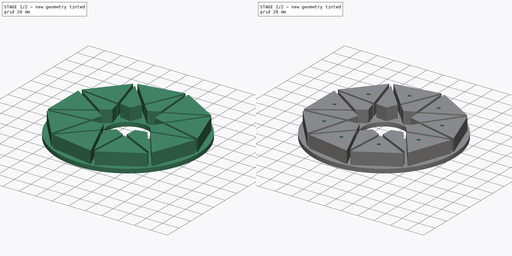
[diagram: build sequence overview — one tinted view per stage of 2, left to right]
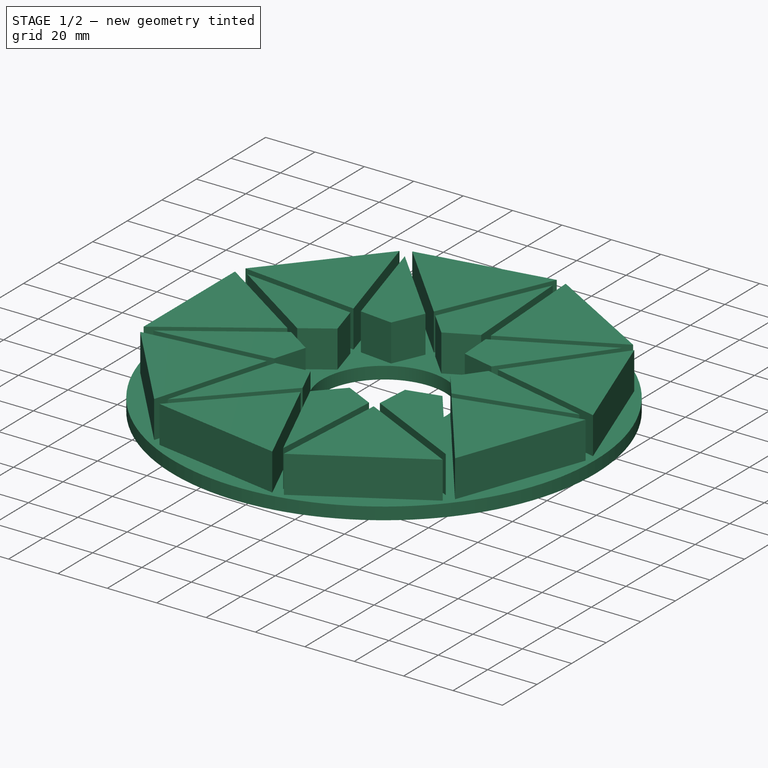
[diagram: stage 1 of 2 — iso view after this stage's code; geometry added in this stage tinted green]
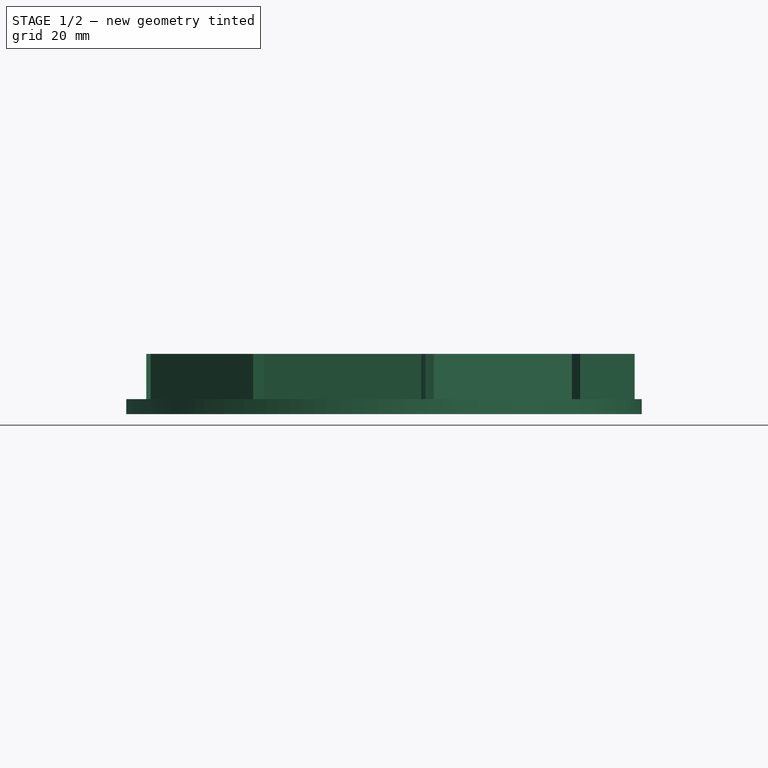
[diagram: stage 1 of 2 — front view after this stage's code; geometry added in this stage tinted green]
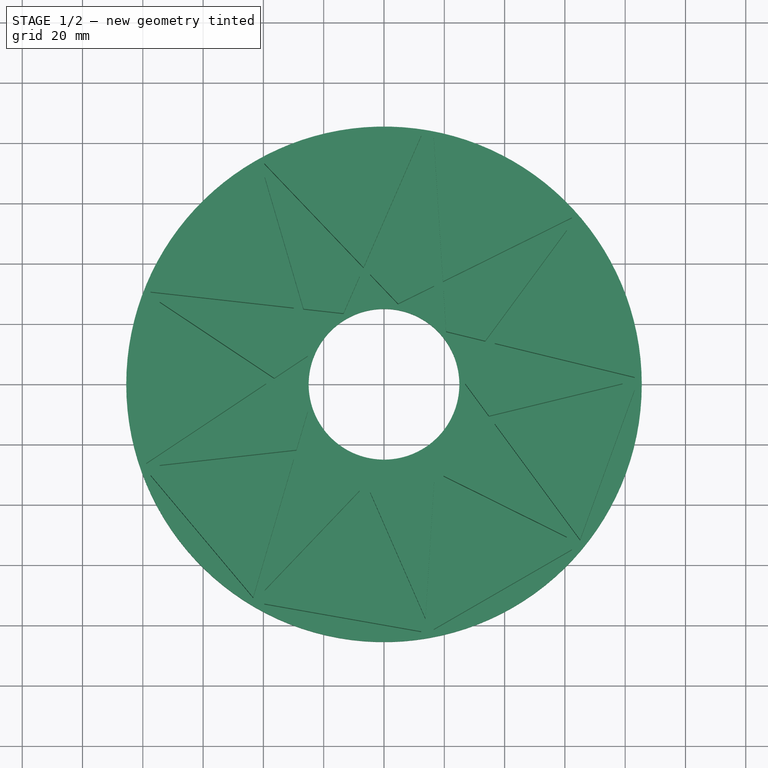
[diagram: stage 1 of 2 — top view after this stage's code; geometry added in this stage tinted green]
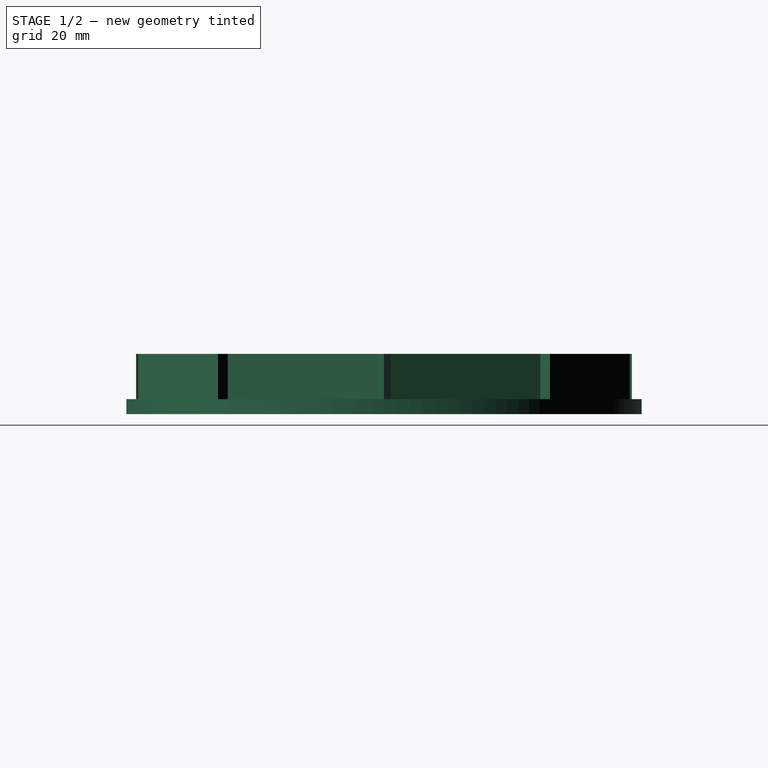
[diagram: stage 1 of 2 — right view after this stage's code; geometry added in this stage tinted green]
FCSTD DOCUMENT  (FreeCAD 0.20R29410 (Git))
Label: wheel_gear_inner_fixation
License: All rights reserved
LicenseURL: http://en.wikipedia.org/wiki/All_rights_reserved
objects: Sketcher::SketchObject×3, PartDesign::Pad×2, Image::ImagePlane×1, PartDesign::Pocket×1, PartDesign::Body×1
note: 10 computed .brp shape members not serialized (recipe doc carries the construction recipe); baked Part::Feature solids carry a one-line shape summary decoded from their .brp

FEATURE [Sketcher::SketchObject] Sketch
  FullyConstrained = true
  MapMode = 5
  Support = -> [XY_Plane]
  sketch-geometry (110):
    g0: LineSegment StartX=65.4968 StartY=-54.9583 StartZ=0 EndX=85.5 EndY=7.1e-15 EndZ=0
    g1: LineSegment StartX=85.5 StartY=7.1e-15 StartZ=0 EndX=65.4968 EndY=54.9583 EndZ=0
    g2: LineSegment StartX=65.4968 StartY=54.9583 StartZ=0 EndX=14.8469 EndY=84.2011 EndZ=0
    g3: LineSegment StartX=14.8469 StartY=84.2011 StartZ=0 EndX=-42.75 EndY=74.0452 EndZ=0
    g4: LineSegment StartX=-42.75 StartY=74.0452 StartZ=0 EndX=-80.3437 EndY=29.2427 EndZ=0
    g5: LineSegment StartX=-80.3437 StartY=29.2427 StartZ=0 EndX=-80.3437 EndY=-29.2427 EndZ=0
    g6: LineSegment StartX=-80.3437 StartY=-29.2427 StartZ=0 EndX=-42.75 EndY=-74.0452 EndZ=0
    g7: LineSegment StartX=-42.75 StartY=-74.0452 StartZ=0 EndX=14.8469 EndY=-84.2011 EndZ=0
    g8: LineSegment StartX=14.8469 StartY=-84.2011 StartZ=0 EndX=65.4968 EndY=-54.9583 EndZ=0
    g9: Circle CenterX=0 CenterY=0 CenterZ=0 NormalX=0 NormalY=0 NormalZ=1 AngleXU=0 Radius=85.5
    g10: LineSegment StartX=22.1582 StartY=-3.90708 StartZ=0 EndX=22.1582 EndY=3.90708 EndZ=0
    g11: LineSegment StartX=22.1582 StartY=3.90708 StartZ=0 EndX=19.4856 EndY=11.25 EndZ=0
    g12: LineSegment StartX=19.4856 StartY=11.25 StartZ=0 EndX=14.4627 EndY=17.236 EndZ=0
    g13: LineSegment StartX=14.4627 StartY=17.236 StartZ=0 EndX=7.69545 EndY=21.1431 EndZ=0
    g14: LineSegment StartX=7.69545 StartY=21.1431 StartZ=0 EndX=-1.5277e-12 EndY=22.5 EndZ=0
    g15: LineSegment StartX=-1.5277e-12 StartY=22.5 StartZ=0 EndX=-7.69545 EndY=21.1431 EndZ=0
    g16: LineSegment StartX=-7.69545 StartY=21.1431 StartZ=0 EndX=-14.4627 EndY=17.236 EndZ=0
    g17: LineSegment StartX=-14.4627 StartY=17.236 StartZ=0 EndX=-19.4856 EndY=11.25 EndZ=0
    g18: LineSegment StartX=-19.4856 StartY=11.25 StartZ=0 EndX=-22.1582 EndY=3.90708 EndZ=0
    g19: LineSegment StartX=-22.1582 StartY=3.90708 StartZ=0 EndX=-22.1582 EndY=-3.90708 EndZ=0
    g20: LineSegment StartX=-22.1582 StartY=-3.90708 StartZ=0 EndX=-19.4856 EndY=-11.25 EndZ=0
    g21: LineSegment StartX=-19.4856 StartY=-11.25 StartZ=0 EndX=-14.4627 EndY=-17.236 EndZ=0
    g22: LineSegment StartX=-14.4627 StartY=-17.236 StartZ=0 EndX=-7.69545 EndY=-21.1431 EndZ=0
    g23: LineSegment StartX=-7.69545 StartY=-21.1431 StartZ=0 EndX=-1.4557e-12 EndY=-22.5 EndZ=0
    g24: LineSegment StartX=-1.4559e-12 StartY=-22.5 StartZ=0 EndX=7.69545 EndY=-21.1431 EndZ=0
    g25: LineSegment StartX=7.69545 StartY=-21.1431 StartZ=0 EndX=14.4627 EndY=-17.236 EndZ=0
    g26: LineSegment StartX=14.4627 StartY=-17.236 StartZ=0 EndX=19.4856 EndY=-11.25 EndZ=0
    g27: LineSegment StartX=19.4856 StartY=-11.25 StartZ=0 EndX=22.1582 EndY=-3.90708 EndZ=0
    g28: Circle CenterX=0 CenterY=0 CenterZ=0 NormalX=0 NormalY=0 NormalZ=1 AngleXU=0 Radius=22.5
    g29: LineSegment StartX=14.4627 StartY=17.236 StartZ=0 EndX=85.5 EndY=7.1e-15 EndZ=0
    g30: LineSegment StartX=14.8469 StartY=84.2011 StartZ=0 EndX=19.4856 EndY=11.25 EndZ=0
    g31: LineSegment StartX=22.1582 StartY=3.90708 StartZ=0 EndX=65.4968 EndY=-54.9583 EndZ=0
    g32: LineSegment StartX=22.1582 StartY=-3.90708 StartZ=0 EndX=65.4968 EndY=54.9583 EndZ=0
    g33: LineSegment StartX=-1.5277e-12 StartY=22.5 StartZ=0 EndX=65.4968 EndY=54.9583 EndZ=0
    g34: LineSegment StartX=-42.75 StartY=74.0452 StartZ=0 EndX=7.69545 EndY=21.1431 EndZ=0
    g35: LineSegment StartX=14.4627 StartY=-17.236 StartZ=0 EndX=85.5 EndY=7.1e-15 EndZ=0
    g36: LineSegment StartX=19.4856 StartY=-11.25 StartZ=0 EndX=14.8469 EndY=-84.2011 EndZ=0
    g37: LineSegment StartX=7.69545 StartY=-21.1431 StartZ=0 EndX=-42.75 EndY=-74.0452 EndZ=0
    g38: LineSegment StartX=-1.4559e-12 StartY=-22.5 StartZ=0 EndX=65.4968 EndY=-54.9583 EndZ=0
    g39: LineSegment StartX=-7.69545 StartY=-21.1431 StartZ=0 EndX=-80.3437 EndY=-29.2427 EndZ=0
    g40: LineSegment StartX=-14.4627 StartY=-17.236 StartZ=0 EndX=14.8469 EndY=-84.2011 EndZ=0
    g41: LineSegment StartX=-14.4627 StartY=17.236 StartZ=0 EndX=14.8469 EndY=84.2011 EndZ=0
    g42: LineSegment StartX=-7.69545 StartY=21.1431 StartZ=0 EndX=-80.3437 EndY=29.2427 EndZ=0
    g43: LineSegment StartX=-22.1582 StartY=3.90708 StartZ=0 EndX=-42.75 EndY=74.0452 EndZ=0
    g44: LineSegment StartX=-19.4856 StartY=-11.25 StartZ=0 EndX=-80.3437 EndY=29.2427 EndZ=0
    g45: LineSegment StartX=-22.1582 StartY=-3.90708 StartZ=0 EndX=-42.75 EndY=-74.0452 EndZ=0
    g46: LineSegment StartX=-19.4856 StartY=11.25 StartZ=0 EndX=-80.3437 EndY=-29.2427 EndZ=0
    g47: LineSegment StartX=16.5216 StartY=81.5022 StartZ=0 EndX=62.3222 EndY=55.0592 EndZ=0
    g48: LineSegment StartX=19.5507 StartY=33.8629 StartZ=0 EndX=62.3222 EndY=55.0592 EndZ=0
    g49: LineSegment StartX=16.5216 StartY=81.5022 StartZ=0 EndX=19.5507 EndY=33.8629 EndZ=0
    g50: LineSegment StartX=-39.7323 StartY=73.0541 StartZ=0 EndX=12.3502 EndY=82.2377 EndZ=0
    g51: LineSegment StartX=12.3502 StartY=82.2377 StartZ=0 EndX=-6.7899 EndY=38.5074 EndZ=0
    g52: LineSegment StartX=-39.7323 StartY=73.0541 StartZ=0 EndX=-6.7899 EndY=38.5074 EndZ=0
    g53: LineSegment StartX=13.7422 StartY=77.9362 StartZ=0 EndX=-4.54537 EndY=36.1536 EndZ=0
    g54: LineSegment StartX=-4.54537 StartY=36.1536 StartZ=0 EndX=4.67068 EndY=26.4887 EndZ=0
    g55: LineSegment StartX=4.67068 StartY=26.4887 StartZ=0 EndX=16.6365 EndY=32.4187 EndZ=0
    g56: LineSegment StartX=16.6365 StartY=32.4187 StartZ=0 EndX=13.7422 EndY=77.9362 EndZ=0
    g57: LineSegment StartX=19.7571 StartY=30.617 StartZ=0 EndX=60.6236 EndY=50.8692 EndZ=0
    g58: LineSegment StartX=60.6236 StartY=50.8692 StartZ=0 EndX=33.5826 EndY=14.1404 EndZ=0
    g59: LineSegment StartX=33.5826 StartY=14.1404 StartZ=0 EndX=20.6046 EndY=17.2893 EndZ=0
    g60: LineSegment StartX=20.6046 StartY=17.2893 StartZ=0 EndX=19.7571 EndY=30.617 EndZ=0
    g61: LineSegment StartX=65.0448 StartY=51.8144 StartZ=0 EndX=36.7434 EndY=13.3735 EndZ=0
    g62: LineSegment StartX=65.0448 StartY=51.8144 StartZ=0 EndX=83.1329 EndY=2.11786 EndZ=0
    g63: LineSegment StartX=36.7434 StartY=13.3735 StartZ=0 EndX=83.1329 EndY=2.11786 EndZ=0
    g64: LineSegment StartX=34.8151 StartY=10.7543 StartZ=0 EndX=79.1385 EndY=0 EndZ=0
    g65: LineSegment StartX=34.8151 StartY=10.7543 StartZ=0 EndX=26.8974 EndY=-1.2204e-12 EndZ=0
    g66: LineSegment StartX=26.8974 StartY=-1.2204e-12 StartZ=0 EndX=34.8151 EndY=-10.7543 EndZ=0
    g67: LineSegment StartX=34.8151 StartY=-10.7543 StartZ=0 EndX=79.1385 EndY=0 EndZ=0
    g68: LineSegment StartX=36.7434 StartY=-13.3735 StartZ=0 EndX=83.1329 EndY=-2.11786 EndZ=0
    g69: LineSegment StartX=83.1329 StartY=-2.11786 StartZ=0 EndX=65.0448 EndY=-51.8144 EndZ=0
    g70: LineSegment StartX=65.0448 StartY=-51.8144 StartZ=0 EndX=36.7434 EndY=-13.3735 EndZ=0
    g71: LineSegment StartX=20.6046 StartY=-17.2893 StartZ=0 EndX=33.5826 EndY=-14.1404 EndZ=0
    g72: LineSegment StartX=20.6046 StartY=-17.2893 StartZ=0 EndX=19.7571 EndY=-30.617 EndZ=0
    g73: LineSegment StartX=19.7571 StartY=-30.617 StartZ=0 EndX=60.6236 EndY=-50.8692 EndZ=0
    g74: LineSegment StartX=60.6236 StartY=-50.8692 StartZ=0 EndX=33.5826 EndY=-14.1404 EndZ=0
    g75: LineSegment StartX=19.5507 StartY=-33.8629 StartZ=0 EndX=16.5216 EndY=-81.5022 EndZ=0
    g76: LineSegment StartX=16.5216 StartY=-81.5022 StartZ=0 EndX=62.3222 EndY=-55.0592 EndZ=0
    g77: LineSegment StartX=62.3222 StartY=-55.0592 StartZ=0 EndX=19.5507 EndY=-33.8629 EndZ=0
    g78: LineSegment StartX=4.67068 StartY=-26.4887 StartZ=0 EndX=16.6365 EndY=-32.4187 EndZ=0
    g79: LineSegment StartX=16.6365 StartY=-32.4187 StartZ=0 EndX=13.7422 EndY=-77.9362 EndZ=0
    g80: LineSegment StartX=13.7422 StartY=-77.9362 StartZ=0 EndX=-4.54537 EndY=-36.1536 EndZ=0
    g81: LineSegment StartX=-4.54537 StartY=-36.1536 StartZ=0 EndX=4.67068 EndY=-26.4887 EndZ=0
    g82: LineSegment StartX=-6.7899 StartY=-38.5074 StartZ=0 EndX=12.3502 EndY=-82.2377 EndZ=0
    g83: LineSegment StartX=12.3502 StartY=-82.2377 StartZ=0 EndX=-39.7323 EndY=-73.0541 EndZ=0
    g84: LineSegment StartX=-39.7323 StartY=-73.0541 StartZ=0 EndX=-6.7899 EndY=-38.5074 EndZ=0
    g85: LineSegment StartX=-26.721 StartY=-24.7736 StartZ=0 EndX=-13.4487 EndY=-23.2938 EndZ=0
    g86: LineSegment StartX=-13.4487 StartY=-23.2938 StartZ=0 EndX=-8.09401 EndY=-35.5279 EndZ=0
    g87: LineSegment StartX=-8.09401 StartY=-35.5279 StartZ=0 EndX=-39.5692 EndY=-68.5359 EndZ=0
    g88: LineSegment StartX=-39.5692 StartY=-68.5359 StartZ=0 EndX=-26.721 EndY=-24.7736 EndZ=0
    g89: LineSegment StartX=-29.9535 StartY=-25.134 StartZ=0 EndX=-43.4006 EndY=-70.9363 EndZ=0
    g90: LineSegment StartX=-43.4006 StartY=-70.9363 StartZ=0 EndX=-77.395 EndY=-30.4233 EndZ=0
    g91: LineSegment StartX=-77.395 StartY=-30.4233 StartZ=0 EndX=-29.9535 EndY=-25.134 EndZ=0
    g92: LineSegment StartX=-74.3658 StartY=-27.0669 StartZ=0 EndX=-36.3937 EndY=-1.80169 EndZ=0
    g93: LineSegment StartX=-36.3937 StartY=-1.80169 StartZ=0 EndX=-25.2753 EndY=-9.19945 EndZ=0
    g94: LineSegment StartX=-25.2753 StartY=-9.19945 StartZ=0 EndX=-29.0373 EndY=-22.0132 EndZ=0
    g95: LineSegment StartX=-29.0373 StartY=-22.0132 StartZ=0 EndX=-74.3658 EndY=-27.0669 EndZ=0
    g96: LineSegment StartX=-39.1015 StartY=-1.42e-14 StartZ=0 EndX=-78.8437 EndY=-26.443 EndZ=0
    g97: LineSegment StartX=-78.8437 StartY=-26.443 StartZ=0 EndX=-78.8437 EndY=26.443 EndZ=0
    g98: LineSegment StartX=-78.8437 StartY=26.443 StartZ=0 EndX=-39.1015 EndY=-1.42e-14 EndZ=0
    g99: LineSegment StartX=-74.3658 StartY=27.0669 StartZ=0 EndX=-36.3937 EndY=1.80169 EndZ=0
    g100: LineSegment StartX=-36.3937 StartY=1.80169 StartZ=0 EndX=-25.2753 EndY=9.19945 EndZ=0
    g101: LineSegment StartX=-25.2753 StartY=9.19945 StartZ=0 EndX=-29.0373 EndY=22.0132 EndZ=0
    g102: LineSegment StartX=-29.0373 StartY=22.0132 StartZ=0 EndX=-74.3658 EndY=27.0669 EndZ=0
    g103: LineSegment StartX=-77.395 StartY=30.4233 StartZ=0 EndX=-43.4006 EndY=70.9363 EndZ=0
    g104: LineSegment StartX=-43.4006 StartY=70.9363 StartZ=0 EndX=-29.9535 EndY=25.134 EndZ=0
    g105: LineSegment StartX=-29.9535 StartY=25.134 StartZ=0 EndX=-77.395 EndY=30.4233 EndZ=0
    g106: LineSegment StartX=-39.5692 StartY=68.5359 StartZ=0 EndX=-26.721 EndY=24.7736 EndZ=0
    g107: LineSegment StartX=-26.721 StartY=24.7736 StartZ=0 EndX=-13.4487 EndY=23.2938 EndZ=0
    g108: LineSegment StartX=-13.4487 StartY=23.2938 StartZ=0 EndX=-8.09401 EndY=35.5279 EndZ=0
    g109: LineSegment StartX=-8.09401 StartY=35.5279 StartZ=0 EndX=-39.5692 EndY=68.5359 EndZ=0
  constraints (287):
    c: Coincident(g0,g1)
    c: Coincident(g1,g2)
    c: Coincident(g2,g3)
    c: Coincident(g3,g4)
    c: Coincident(g4,g5)
    c: Coincident(g5,g6)
    c: Coincident(g6,g7)
    c: Coincident(g7,g8)
    c: Coincident(g8,g0)
    c: Equal(g0, g1-g8) x8
    c: PointOnObject(g0,g9)
    c: PointOnObject(g1,g9)
    c: PointOnObject(g2,g9)
    c: PointOnObject(g3,g9)
    c: PointOnObject(g4,g9)
    c: PointOnObject(g5,g9)
    c: PointOnObject(g6,g9)
    c: PointOnObject(g7,g9)
    c: PointOnObject(g8,g9)
    c: Radius(g9) = 85.5
    c: Coincident(g9,g-1)
    c: Vertical(g5)
    c: Coincident(g10,g11)
    c: Coincident(g11,g12)
    c: Coincident(g12,g13)
    c: Coincident(g13,g14)
    c: Coincident(g14,g15)
    c: Coincident(g15,g16)
    c: Coincident(g16,g17)
    c: Coincident(g17,g18)
    c: Coincident(g18,g19)
    c: Coincident(g19,g20)
    c: Coincident(g20,g21)
    c: Coincident(g21,g22)
    c: Coincident(g22,g23)
    c: Coincident(g23,g24)
    c: Coincident(g24,g25)
    c: Coincident(g25,g26)
    c: Coincident(g26,g27)
    c: Coincident(g27,g10)
    c: Equal(g10, g11-g27) x17
    c: PointOnObject(g10,g28)
    c: PointOnObject(g11,g28)
    c: PointOnObject(g12,g28)
    c: PointOnObject(g13,g28)
    c: PointOnObject(g14,g28)
    c: PointOnObject(g15,g28)
    c: PointOnObject(g16,g28)
    c: PointOnObject(g17,g28)
    c: PointOnObject(g18,g28)
    c: PointOnObject(g19,g28)
    c: PointOnObject(g20,g28)
    c: PointOnObject(g21,g28)
    c: PointOnObject(g22,g28)
    c: PointOnObject(g23,g28)
    c: PointOnObject(g24,g28)
    c: PointOnObject(g25,g28)
    c: PointOnObject(g26,g28)
    c: PointOnObject(g27,g28)
    c: Coincident(g28,g9)
    c: Radius(g28) = 22.5
    c: Vertical(g19)
    c: Coincident(g33,g14)
    c: Coincident(g34,g13)
    c: Coincident(g29,g12)
    c: Coincident(g30,g11)
    c: Coincident(g31,g10)
    c: Coincident(g10,g32)
    c: Coincident(g25,g35)
    c: Coincident(g36,g26)
    c: Coincident(g36,g7)
    c: Coincident(g31,g0)
    c: Coincident(g29,g0)
    c: Coincident(g35,g0)
    c: Coincident(g33,g1)
    c: Coincident(g32,g1)
    c: Coincident(g30,g2)
    c: Coincident(g34,g3)
    c: Coincident(g38,g0)
    c: Coincident(g38,g23)
    c: Coincident(g37,g24)
    c: Coincident(g37,g6)
    c: Coincident(g40,g7)
    c: Coincident(g40,g21)
    c: Coincident(g39,g22)
    c: Coincident(g39,g5)
    c: Coincident(g45,g6)
    c: Coincident(g45,g19)
    c: Coincident(g44,g20)
    c: Coincident(g42,g4)
    c: Coincident(g44,g4)
    c: Coincident(g46,g5)
    c: Coincident(g43,g18)
    c: Coincident(g46,g17)
    c: Coincident(g41,g16)
    c: Coincident(g42,g15)
    c: Coincident(g41,g2)
    c: Coincident(g43,g3)
    c: Coincident(g47,g49)
    c: Coincident(g49,g48)
    c: Coincident(g47,g48)
    c: Parallel(g47,g2)
    c: Parallel(g49,g30)
    c: Parallel(g48,g33)
    c: Distance(g47,g2) = 1.5
    c: Distance(g48,g30) = 1.5
    c: Distance(g47,g33) = 1.5
    c: Coincident(g52,g51)
    c: Coincident(g51,g50)
    c: Coincident(g50,g52)
    c: Parallel(g50,g3)
    c: Parallel(g52,g34)
    c: Parallel(g51,g41)
    c: Distance(g51,g34) = 1.5
    c: Distance(g50,g3) = 1.5
    c: Distance(g50,g41) = 1.5
    c: Coincident(g53,g56)
    c: Coincident(g56,g55)
    c: Coincident(g55,g54)
    c: Coincident(g54,g53)
    c: Parallel(g53,g41)
    c: Parallel(g56,g30)
    c: Parallel(g55,g33)
    c: Parallel(g54,g34)
    c: Distance(g53,g41) = 1.5
    c: Distance(g55,g30) = 1.5
    c: Distance(g54,g33) = 1.5
    c: Distance(g53,g34) = 1.5
    c: PointOnObject(g64,g-1)
    c: Coincident(g57,g58)
    c: Coincident(g58,g59)
    c: Coincident(g60,g59)
    c: Coincident(g60,g57)
    c: Coincident(g61,g62)
    c: Coincident(g61,g63)
    c: Coincident(g63,g62)
    c: Coincident(g64,g67)
    c: Coincident(g68,g69)
    c: Coincident(g66,g67)
    c: Coincident(g65,g66)
    c: Coincident(g64,g65)
    c: Coincident(g68,g70)
    c: Coincident(g70,g69)
    c: Coincident(g74,g73)
    c: Coincident(g74,g71)
    c: Coincident(g71,g72)
    c: Coincident(g72,g73)
    c: Coincident(g75,g77)
    c: Coincident(g75,g76)
    c: Coincident(g76,g77)
    c: Coincident(g80,g79)
    c: Coincident(g79,g78)
    c: Coincident(g81,g78)
    c: Coincident(g81,g80)
    c: Coincident(g82,g84)
    c: Coincident(g83,g82)
    c: Coincident(g83,g84)
    c: Coincident(g85,g88)
    c: Coincident(g86,g87)
    c: Coincident(g88,g87)
    c: Coincident(g85,g86)
    c: Coincident(g89,g91)
    c: Coincident(g94,g95)
    c: Coincident(g89,g90)
    c: Coincident(g91,g90)
    c: Coincident(g92,g95)
    c: Coincident(g96,g97)
    c: Coincident(g94,g93)
    c: Coincident(g93,g92)
    c: Coincident(g96,g98)
    c: Coincident(g99,g100)
    c: Coincident(g100,g101)
    c: Coincident(g101,g102)
    c: Coincident(g109,g108)
    c: Coincident(g108,g107)
    c: Coincident(g107,g106)
    c: Coincident(g104,g105)
    c: Coincident(g106,g109)
    c: Coincident(g103,g104)
    c: Coincident(g102,g99)
    c: Coincident(g103,g105)
    c: Coincident(g97,g98)
    c: Parallel(g99,g44)
    c: Parallel(g98,g44)
    c: Parallel(g46,g92)
    c: Parallel(g100,g46)
    c: Parallel(g101,g43)
    c: Parallel(g96,g46)
    c: Parallel(g97,g5)
    c: Parallel(g93,g44)
    c: Parallel(g94,g45)
    c: Parallel(g95,g39)
    c: Distance(g92,g39) = 1.5
    c: Distance(g92,g46) = 1.5
    c: Distance(g92,g44) = 1.5
    c: Distance(g93,g45) = 1.5
    c: Distance(g96,g46) = 1.5
    c: Distance(g96,g5) = 1.5
    c: Distance(g97,g44) = 1.5
    c: Distance(g99,g44) = 1.5
    c: Parallel(g102,g42)
    c: Distance(g101,g42) = 1.5
    c: Distance(g100,g43) = 1.5
    c: Distance(g99,g46) = 1.5
    c: Parallel(g109,g34)
    c: Parallel(g106,g43)
    c: Parallel(g107,g42)
    c: Parallel(g108,g41)
    c: Parallel(g105,g42)
    c: Parallel(g103,g4)
    c: Parallel(g104,g43)
    c: Distance(g103,g4) = 1.5
    c: Distance(g104,g43) = 1.5
    c: Distance(g104,g42) = 1.5
    c: Distance(g106,g34) = 1.5
    c: Distance(g108,g41) = 1.5
    c: Distance(g106,g42) = 1.5
    c: Distance(g106,g43) = 1.5
    c: Parallel(g62,g1)
    c: Parallel(g32,g61)
    c: Parallel(g58,g32)
    c: Parallel(g57,g33)
    c: Parallel(g60,g30)
    c: Parallel(g59,g29)
    c: Parallel(g63,g29)
    c: Parallel(g64,g29)
    c: Parallel(g65,g32)
    c: Parallel(g66,g31)
    c: Parallel(g67,g35)
    c: Parallel(g68,g35)
    c: Parallel(g69,g0)
    c: Parallel(g70,g31)
    c: Parallel(g74,g31)
    c: Parallel(g71,g35)
    c: Parallel(g72,g36)
    c: Parallel(g73,g38)
    c: Parallel(g77,g38)
    c: Parallel(g75,g36)
    c: Parallel(g76,g8)
    c: Parallel(g79,g36)
    c: Parallel(g38,g78)
    c: Parallel(g80,g40)
    c: Parallel(g81,g37)
    c: Parallel(g82,g40)
    c: Parallel(g84,g37)
    c: Parallel(g83,g7)
    c: Parallel(g86,g40)
    c: Parallel(g85,g39)
    c: Parallel(g88,g45)
    c: Parallel(g87,g37)
    c: Parallel(g89,g45)
    c: Parallel(g91,g39)
    c: Parallel(g90,g6)
    c: Distance(g86,g37) = 1.5
    c: Distance(g85,g45) = 1.5
    c: Distance(g85,g39) = 1.5
    c: Distance(g86,g40) = 1.5
    c: Distance(g89,g45) = 1.5
    c: Distance(g90,g39) = 1.5
    c: Distance(g89,g6) = 1.5
    c: Distance(g78,g38) = 1.5
    c: Distance(g79,g36) = 1.5
    c: Distance(g80,g40) = 1.5
    c: Distance(g78,g37) = 1.5
    c: Distance(g82,g40) = 1.5
    c: Distance(g83,g37) = 1.5
    c: Distance(g82,g7) = 1.5
    c: Distance(g75,g38) = 1.5
    c: Distance(g76,g8) = 1.5
    c: Distance(g75,g36) = 1.5
    c: Distance(g71,g35) = 1.5
    c: Distance(g73,g31) = 1.5
    c: Distance(g71,g36) = 1.5
    c: Distance(g72,g38) = 1.5
    c: Distance(g68,g35) = 1.5
    c: Distance(g68,g31) = 1.5
    c: Distance(g68,g0) = 1.5
    c: Distance(g66,g35) = 1.5
    c: Distance(g65,g31) = 1.5
    c: Distance(g64,g32) = 1.5
    c: Distance(g61,g29) = 1.5
    c: Distance(g61,g32) = 1.5
    c: Distance(g62,g1) = 1.5
    c: Distance(g57,g33) = 1.5
    c: Distance(g57,g32) = 1.5
    c: Distance(g59,g30) = 1.5
    c: Distance(g58,g29) = 1.5
FEATURE [Image::ImagePlane] ImagePlane
  Placement = pos=(-6,-7,0) rot=(0,0,1;0rad)
  XSize = 210.028
  YSize = 373.384
FEATURE [Sketcher::SketchObject] Sketch001
  FullyConstrained = true
  MapMode = 5
  Support = -> [XY_Plane]
  sketch-geometry (68):
    g0: LineSegment StartX=65.4968 StartY=-54.9583 StartZ=0 EndX=85.5 EndY=0 EndZ=0
    g1: LineSegment StartX=85.5 StartY=0 StartZ=0 EndX=65.4968 EndY=54.9583 EndZ=0
    g2: LineSegment StartX=65.4968 StartY=54.9583 StartZ=0 EndX=14.8469 EndY=84.2011 EndZ=0
    g3: LineSegment StartX=14.8469 StartY=84.2011 StartZ=0 EndX=-42.75 EndY=74.0452 EndZ=0
    g4: LineSegment StartX=-42.75 StartY=74.0452 StartZ=0 EndX=-80.3437 EndY=29.2427 EndZ=0
    g5: LineSegment StartX=-80.3437 StartY=29.2427 StartZ=0 EndX=-80.3437 EndY=-29.2427 EndZ=0
    g6: LineSegment StartX=-80.3437 StartY=-29.2427 StartZ=0 EndX=-42.75 EndY=-74.0452 EndZ=0
    g7: LineSegment StartX=-42.75 StartY=-74.0452 StartZ=0 EndX=14.8469 EndY=-84.2011 EndZ=0
    g8: LineSegment StartX=14.8469 StartY=-84.2011 StartZ=0 EndX=65.4968 EndY=-54.9583 EndZ=0
    g9: Circle CenterX=0 CenterY=0 CenterZ=0 NormalX=0 NormalY=0 NormalZ=1 AngleXU=0 Radius=85.5
    g10: LineSegment StartX=22.1582 StartY=-3.90708 StartZ=0 EndX=22.1582 EndY=3.90708 EndZ=0
    g11: LineSegment StartX=22.1582 StartY=3.90708 StartZ=0 EndX=19.4856 EndY=11.25 EndZ=0
    g12: LineSegment StartX=19.4856 StartY=11.25 StartZ=0 EndX=14.4627 EndY=17.236 EndZ=0
    g13: LineSegment StartX=14.4627 StartY=17.236 StartZ=0 EndX=7.69545 EndY=21.1431 EndZ=0
    g14: LineSegment StartX=7.69545 StartY=21.1431 StartZ=0 EndX=4.4e-15 EndY=22.5 EndZ=0
    g15: LineSegment StartX=4.4e-15 StartY=22.5 StartZ=0 EndX=-7.69545 EndY=21.1431 EndZ=0
    g16: LineSegment StartX=-7.69545 StartY=21.1431 StartZ=0 EndX=-14.4627 EndY=17.236 EndZ=0
    g17: LineSegment StartX=-14.4627 StartY=17.236 StartZ=0 EndX=-19.4856 EndY=11.25 EndZ=0
    g18: LineSegment StartX=-19.4856 StartY=11.25 StartZ=0 EndX=-22.1582 EndY=3.90708 EndZ=0
    g19: LineSegment StartX=-22.1582 StartY=3.90708 StartZ=0 EndX=-22.1582 EndY=-3.90708 EndZ=0
    g20: LineSegment StartX=-22.1582 StartY=-3.90708 StartZ=0 EndX=-19.4856 EndY=-11.25 EndZ=0
    g21: LineSegment StartX=-19.4856 StartY=-11.25 StartZ=0 EndX=-14.4627 EndY=-17.236 EndZ=0
    g22: LineSegment StartX=-14.4627 StartY=-17.236 StartZ=0 EndX=-7.69545 EndY=-21.1431 EndZ=0
    g23: LineSegment StartX=-7.69545 StartY=-21.1431 StartZ=0 EndX=-5.3e-15 EndY=-22.5 EndZ=0
    g24: LineSegment StartX=-5.3e-15 StartY=-22.5 StartZ=0 EndX=7.69545 EndY=-21.1431 EndZ=0
    g25: LineSegment StartX=7.69545 StartY=-21.1431 StartZ=0 EndX=14.4627 EndY=-17.236 EndZ=0
    g26: LineSegment StartX=14.4627 StartY=-17.236 StartZ=0 EndX=19.4856 EndY=-11.25 EndZ=0
    g27: LineSegment StartX=19.4856 StartY=-11.25 StartZ=0 EndX=22.1582 EndY=-3.90708 EndZ=0
    g28: Circle CenterX=0 CenterY=0 CenterZ=0 NormalX=0 NormalY=0 NormalZ=1 AngleXU=0 Radius=22.5
    g29: LineSegment StartX=14.4627 StartY=17.236 StartZ=0 EndX=85.5 EndY=0 EndZ=0
    g30: LineSegment StartX=14.8469 StartY=84.2011 StartZ=0 EndX=19.4856 EndY=11.25 EndZ=0
    g31: LineSegment StartX=22.1582 StartY=3.90708 StartZ=0 EndX=65.4968 EndY=-54.9583 EndZ=0
    g32: LineSegment StartX=22.1582 StartY=-3.90708 StartZ=0 EndX=65.4968 EndY=54.9583 EndZ=0
    g33: LineSegment StartX=4.4e-15 StartY=22.5 StartZ=0 EndX=65.4968 EndY=54.9583 EndZ=0
    g34: LineSegment StartX=-42.75 StartY=74.0452 StartZ=0 EndX=7.69545 EndY=21.1431 EndZ=0
    g35: LineSegment StartX=14.4627 StartY=-17.236 StartZ=0 EndX=85.5 EndY=0 EndZ=0
    g36: LineSegment StartX=19.4856 StartY=-11.25 StartZ=0 EndX=14.8469 EndY=-84.2011 EndZ=0
    g37: LineSegment StartX=7.69545 StartY=-21.1431 StartZ=0 EndX=-42.75 EndY=-74.0452 EndZ=0
    g38: LineSegment StartX=-5.3e-15 StartY=-22.5 StartZ=0 EndX=65.4968 EndY=-54.9583 EndZ=0
    g39: LineSegment StartX=-7.69545 StartY=-21.1431 StartZ=0 EndX=-80.3437 EndY=-29.2427 EndZ=0
    g40: LineSegment StartX=-14.4627 StartY=-17.236 StartZ=0 EndX=14.8469 EndY=-84.2011 EndZ=0
    g41: LineSegment StartX=-14.4627 StartY=17.236 StartZ=0 EndX=14.8469 EndY=84.2011 EndZ=0
    g42: LineSegment StartX=-7.69545 StartY=21.1431 StartZ=0 EndX=-80.3437 EndY=29.2427 EndZ=0
    g43: LineSegment StartX=-22.1582 StartY=3.90708 StartZ=0 EndX=-42.75 EndY=74.0452 EndZ=0
    g44: LineSegment StartX=-19.4856 StartY=-11.25 StartZ=0 EndX=-80.3437 EndY=29.2427 EndZ=0
    g45: LineSegment StartX=-22.1582 StartY=-3.90708 StartZ=0 EndX=-42.75 EndY=-74.0452 EndZ=0
    g46: LineSegment StartX=-19.4856 StartY=11.25 StartZ=0 EndX=-80.3437 EndY=-29.2427 EndZ=0
    g47: LineSegment StartX=30.0006 StartY=51.9612 StartZ=0 EndX=-10.4182 EndY=59.0886 EndZ=0
    g48: LineSegment StartX=-10.4182 StartY=59.0886 StartZ=0 EndX=-45.9622 EndY=38.5678 EndZ=0
    g49: LineSegment StartX=-45.9622 StartY=38.5678 StartZ=0 EndX=-60 EndY=0.00070025 EndZ=0
    g50: LineSegment StartX=-60 StartY=0.00070025 StartZ=0 EndX=-45.9631 EndY=-38.5667 EndZ=0
    g51: LineSegment StartX=-45.9631 StartY=-38.5667 StartZ=0 EndX=-10.4196 EndY=-59.0883 EndZ=0
    g52: LineSegment StartX=-10.4196 StartY=-59.0883 StartZ=0 EndX=29.9994 EndY=-51.9619 EndZ=0
    g53: LineSegment StartX=29.9994 StartY=-51.9619 StartZ=0 EndX=56.3813 EndY=-20.5219 EndZ=0
    g54: LineSegment StartX=56.3813 StartY=-20.5219 StartZ=0 EndX=56.3818 EndY=20.5206 EndZ=0
    g55: LineSegment StartX=56.3818 StartY=20.5206 StartZ=0 EndX=30.0006 EndY=51.9612 EndZ=0
    g56: Circle CenterX=0 CenterY=0 CenterZ=0 NormalX=0 NormalY=0 NormalZ=1 AngleXU=0 Radius=60
    g57: GeomPoint X=-6.31969 Y=35.8407 Z=0
    g58: LineSegment StartX=-10.4182 StartY=59.0886 StartZ=0 EndX=-6.31969 EndY=35.8407 EndZ=0
    g59: Circle CenterX=-10.4182 CenterY=59.0886 CenterZ=0 NormalX=0 NormalY=0 NormalZ=1 AngleXU=0 Radius=2
    g60: Circle CenterX=30.0006 CenterY=51.9612 CenterZ=0 NormalX=0 NormalY=0 NormalZ=1 AngleXU=0 Radius=2
    g61: Circle CenterX=-45.9622 CenterY=38.5678 CenterZ=0 NormalX=0 NormalY=0 NormalZ=1 AngleXU=0 Radius=2
    g62: Circle CenterX=-60 CenterY=0.00070025 CenterZ=0 NormalX=0 NormalY=0 NormalZ=1 AngleXU=0 Radius=2
    g63: Circle CenterX=-45.9631 CenterY=-38.5667 CenterZ=0 NormalX=0 NormalY=0 NormalZ=1 AngleXU=0 Radius=2
    g64: Circle CenterX=-10.4196 CenterY=-59.0883 CenterZ=0 NormalX=0 NormalY=0 NormalZ=1 AngleXU=0 Radius=2
    g65: Circle CenterX=29.9994 CenterY=-51.9619 CenterZ=0 NormalX=0 NormalY=0 NormalZ=1 AngleXU=0 Radius=2
    g66: Circle CenterX=56.3813 CenterY=-20.5219 CenterZ=0 NormalX=0 NormalY=0 NormalZ=1 AngleXU=0 Radius=2
    g67: Circle CenterX=56.3818 CenterY=20.5206 CenterZ=0 NormalX=0 NormalY=0 NormalZ=1 AngleXU=0 Radius=2
  constraints (142):
    c: Coincident(g0,g1)
    c: Coincident(g1,g2)
    c: Coincident(g2,g3)
    c: Coincident(g3,g4)
    c: Coincident(g4,g5)
    c: Coincident(g5,g6)
    c: Coincident(g6,g7)
    c: Coincident(g7,g8)
    c: Coincident(g8,g0)
    c: Equal(g0, g1-g8) x8
    c: PointOnObject(g0,g9)
    c: PointOnObject(g1,g9)
    c: PointOnObject(g2,g9)
    c: PointOnObject(g3,g9)
    c: PointOnObject(g4,g9)
    c: PointOnObject(g5,g9)
    c: PointOnObject(g6,g9)
    c: PointOnObject(g7,g9)
    c: PointOnObject(g8,g9)
    c: Radius(g9) = 85.5
    c: Coincident(g9,g-1)
    c: Vertical(g5)
    c: Coincident(g10,g11)
    c: Coincident(g11,g12)
    c: Coincident(g12,g13)
    c: Coincident(g13,g14)
    c: Coincident(g14,g15)
    c: Coincident(g15,g16)
    c: Coincident(g16,g17)
    c: Coincident(g17,g18)
    c: Coincident(g18,g19)
    c: Coincident(g19,g20)
    c: Coincident(g20,g21)
    c: Coincident(g21,g22)
    c: Coincident(g22,g23)
    c: Coincident(g23,g24)
    c: Coincident(g24,g25)
    c: Coincident(g25,g26)
    c: Coincident(g26,g27)
    c: Coincident(g27,g10)
    c: Equal(g10, g11-g27) x17
    c: PointOnObject(g10,g28)
    c: PointOnObject(g11,g28)
    c: PointOnObject(g12,g28)
    c: PointOnObject(g13,g28)
    c: PointOnObject(g14,g28)
    c: PointOnObject(g15,g28)
    c: PointOnObject(g16,g28)
    c: PointOnObject(g17,g28)
    c: PointOnObject(g18,g28)
    c: PointOnObject(g19,g28)
    c: PointOnObject(g20,g28)
    c: PointOnObject(g21,g28)
    c: PointOnObject(g22,g28)
    c: PointOnObject(g23,g28)
    c: PointOnObject(g24,g28)
    c: PointOnObject(g25,g28)
    c: PointOnObject(g26,g28)
    c: PointOnObject(g27,g28)
    c: Coincident(g28,g9)
    c: Radius(g28) = 22.5
    c: Vertical(g19)
    c: Coincident(g33,g14)
    c: Coincident(g34,g13)
    c: Coincident(g29,g12)
    c: Coincident(g30,g11)
    c: Coincident(g31,g10)
    c: Coincident(g10,g32)
    c: Coincident(g25,g35)
    c: Coincident(g36,g26)
    c: Coincident(g36,g7)
    c: Coincident(g31,g0)
    c: Coincident(g29,g0)
    c: Coincident(g35,g0)
    c: Coincident(g33,g1)
    c: Coincident(g32,g1)
    c: Coincident(g30,g2)
    c: Coincident(g34,g3)
    c: Coincident(g38,g0)
    c: Coincident(g38,g23)
    c: Coincident(g37,g24)
    c: Coincident(g37,g6)
    c: Coincident(g40,g7)
    c: Coincident(g40,g21)
    c: Coincident(g39,g22)
    c: Coincident(g39,g5)
    c: Coincident(g45,g6)
    c: Coincident(g45,g19)
    c: Coincident(g44,g20)
    c: Coincident(g42,g4)
    c: Coincident(g44,g4)
    c: Coincident(g46,g5)
    c: Coincident(g43,g18)
    c: Coincident(g46,g17)
    c: Coincident(g41,g16)
    c: Coincident(g42,g15)
    c: Coincident(g41,g2)
    c: Coincident(g43,g3)
    c: Coincident(g47,g48)
    c: Coincident(g48,g49)
    c: Coincident(g49,g50)
    c: Coincident(g50,g51)
    c: Coincident(g51,g52)
    c: Coincident(g52,g53)
    c: Coincident(g53,g54)
    c: Coincident(g54,g55)
    c: Coincident(g55,g47)
    c: Equal(g47, g48-g55) x8
    c: PointOnObject(g47,g56)
    c: PointOnObject(g48,g56)
    c: PointOnObject(g49,g56)
    c: PointOnObject(g50,g56)
    c: PointOnObject(g51,g56)
    c: PointOnObject(g52,g56)
    c: PointOnObject(g53,g56)
    c: PointOnObject(g54,g56)
    c: PointOnObject(g55,g56)
    c: Radius(g56) = 60
    c: Coincident(g56,g9)
    c: PointOnObject(g57,g34)
    c: PointOnObject(g57,g41)
    c: Coincident(g58,g47)
    c: Coincident(g58,g57)
    c: Angle(g58,g34) = 0.587129
    c: Coincident(g59,g47)
    c: Coincident(g60,g47)
    c: Coincident(g67,g54)
    c: Coincident(g53,g66)
    c: Coincident(g61,g48)
    c: Coincident(g49,g62)
    c: Coincident(g63,g50)
    c: Coincident(g64,g51)
    c: Coincident(g65,g52)
    c: Radius(g59) = 2
    c: Radius(g60) = 2
    c: Radius(g61) = 2
    c: Radius(g62) = 2
    c: Radius(g67) = 2
    c: Radius(g63) = 2
    c: Radius(g66) = 2
    c: Radius(g64) = 2
    c: Radius(g65) = 2
FEATURE [Sketcher::SketchObject] Sketch002
  FullyConstrained = true
  MapMode = 5
  Support = -> [XY_Plane]
  sketch-geometry (2):
    g0: Circle CenterX=0 CenterY=0 CenterZ=0 NormalX=0 NormalY=0 NormalZ=1 AngleXU=0 Radius=25
    g1: Circle CenterX=0 CenterY=0 CenterZ=0 NormalX=0 NormalY=0 NormalZ=1 AngleXU=0 Radius=85.5
  constraints (4):
    c: Coincident(g1,g-1)
    c: Coincident(g0,g1)
    c: Radius(g0) = 25
    c: Radius(g1) = 85.5
FEATURE [PartDesign::Pad] Pad
  Direction = (0,0,1)
  Length = 5
  Length2 = 10
  Profile = -> Sketch002
  ReferenceAxis = -> Sketch002 [N_Axis]
  Type = 0
FEATURE [PartDesign::Pad] Pad001
  BaseFeature = -> Pad
  Direction = (0,0,1)
  Length = 20
  Length2 = 10
  Profile = -> Sketch
  ReferenceAxis = -> Sketch [N_Axis]
  Type = 0
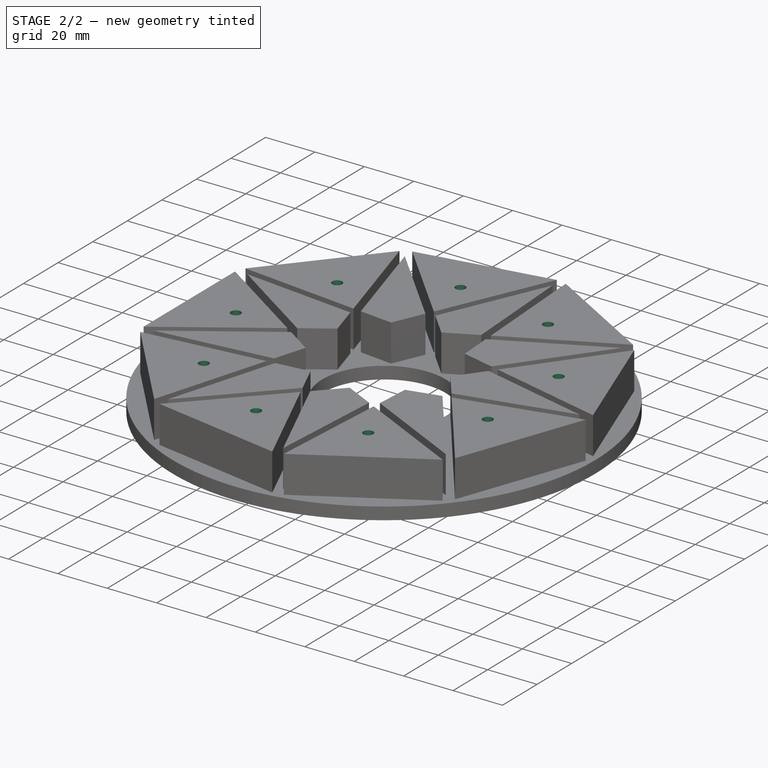
[diagram: stage 2 of 2 — iso view after this stage's code; geometry added in this stage tinted green]
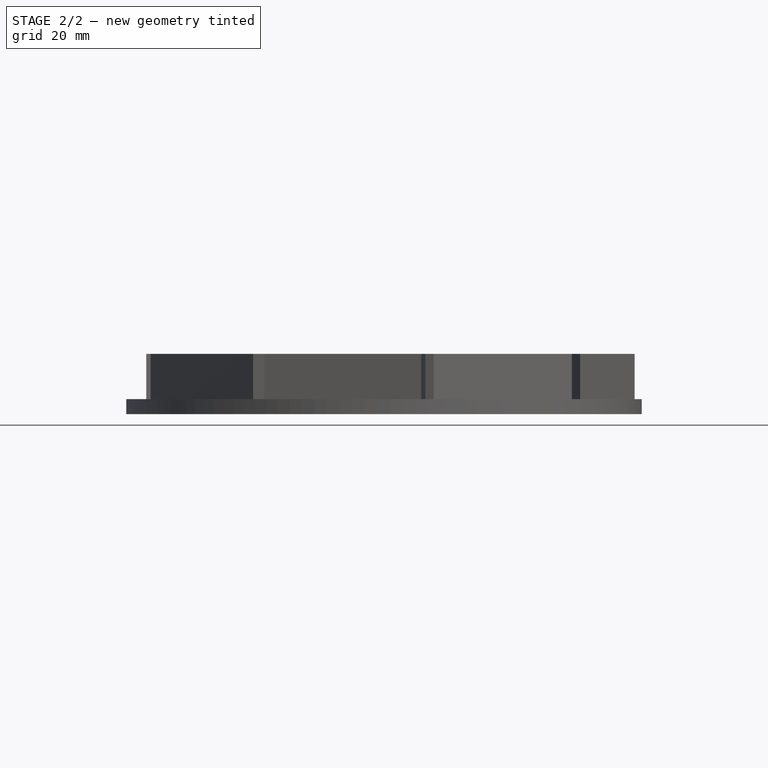
[diagram: stage 2 of 2 — front view after this stage's code; geometry added in this stage tinted green]
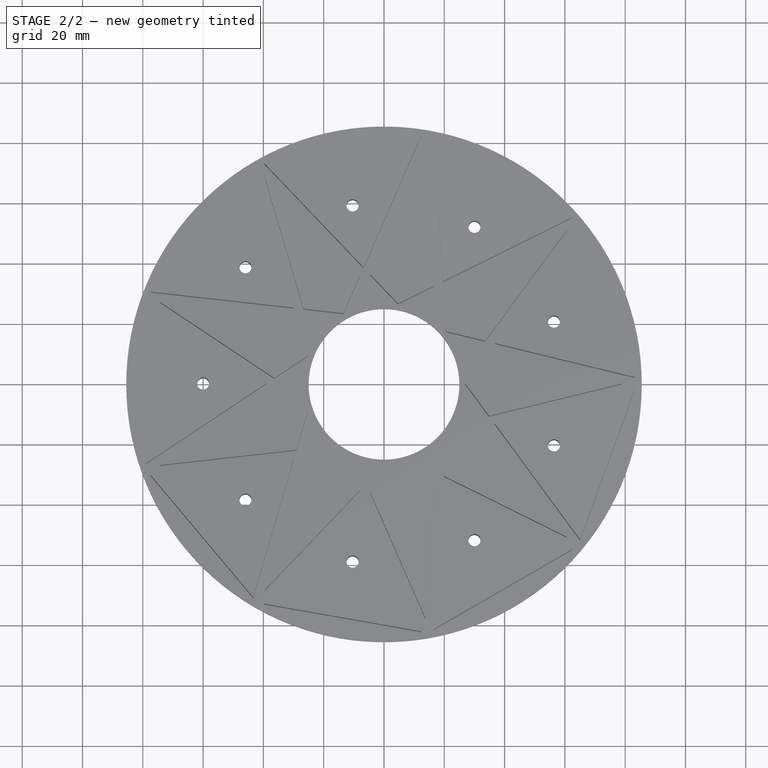
[diagram: stage 2 of 2 — top view after this stage's code; geometry added in this stage tinted green]
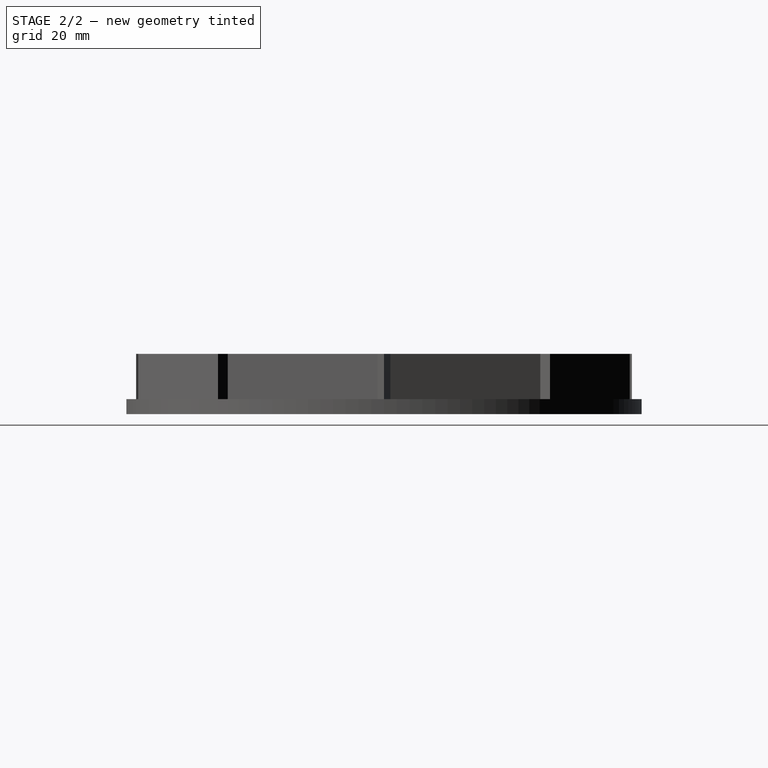
[diagram: stage 2 of 2 — right view after this stage's code; geometry added in this stage tinted green]
FEATURE [PartDesign::Pocket] Pocket
  BaseFeature = -> Pad001
  Direction = (0,0,-1)
  Length = 5
  Length2 = 5
  Profile = -> Sketch001
  ReferenceAxis = -> Sketch001 [N_Axis]
  Reversed = true
  Type = 1
FEATURE [PartDesign::Body] Body
  Group = -> [Sketch002,Pad,Sketch,Pad001,Sketch001,Pocket]
  Origin = -> Origin
  Tip = -> Pocket
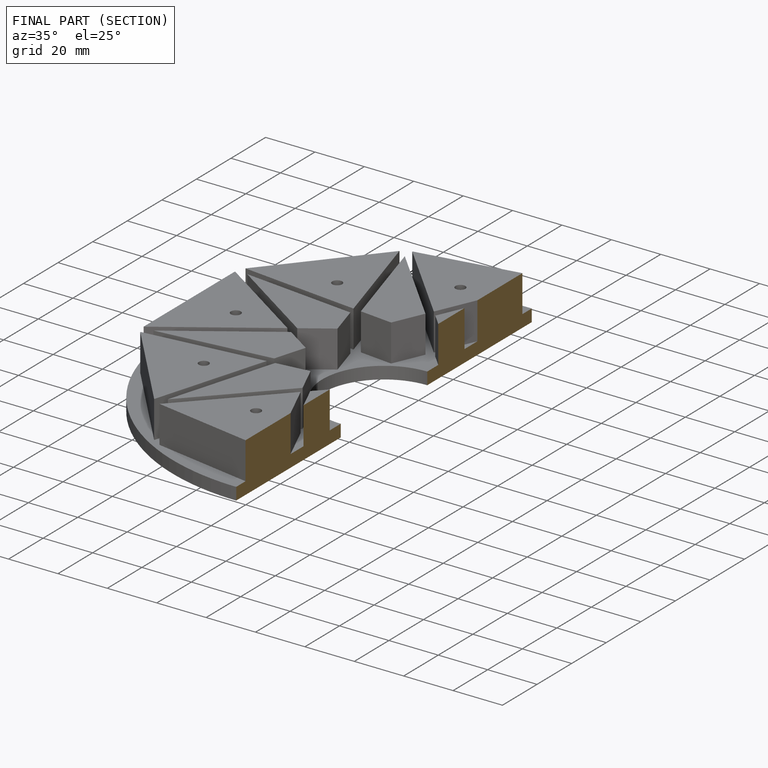
[diagram: finished part — half-section view (interior)]
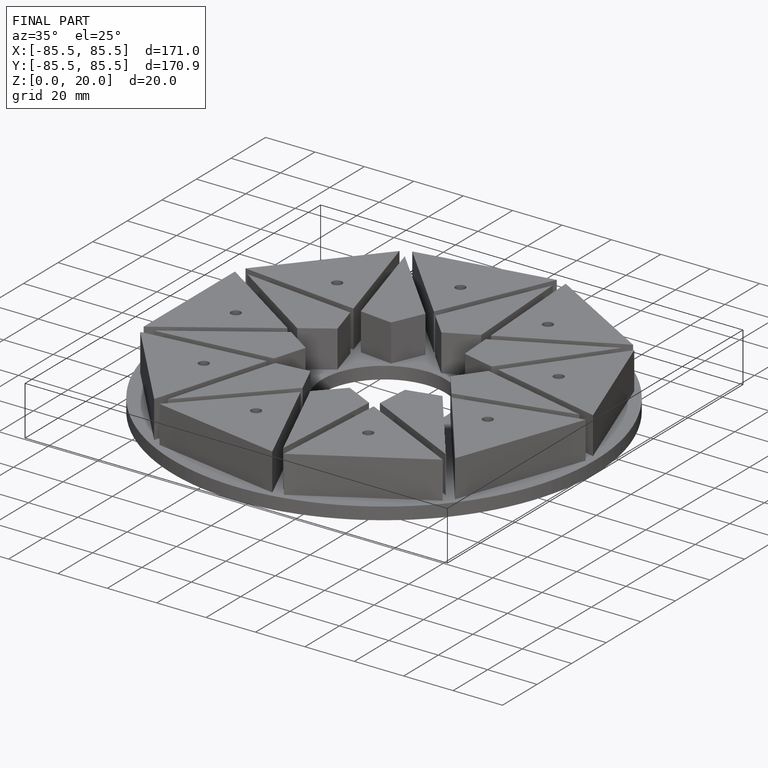
[diagram: finished part — iso view with bounding-box wireframe]
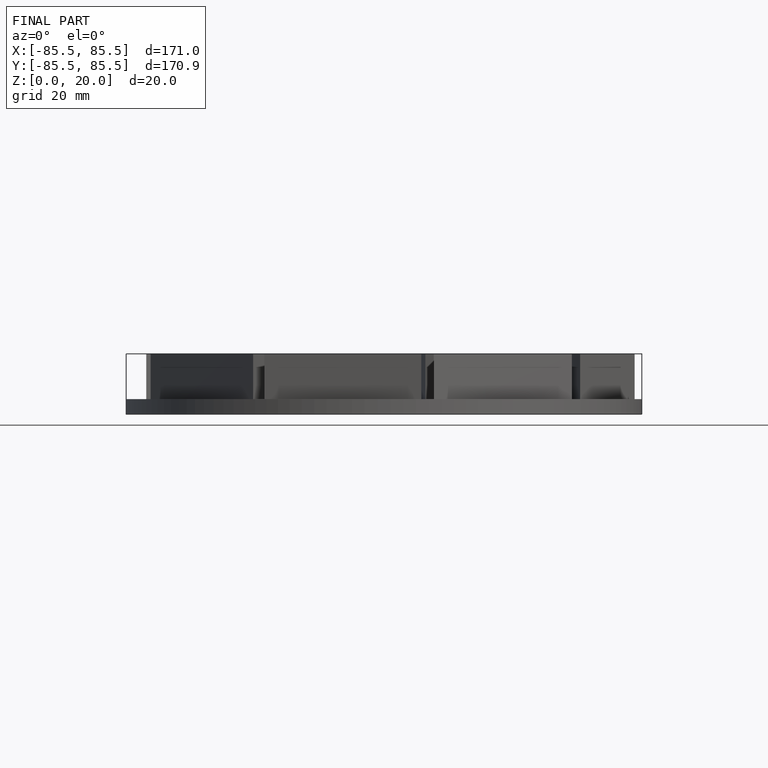
[diagram: finished part — front view with bounding-box wireframe]
